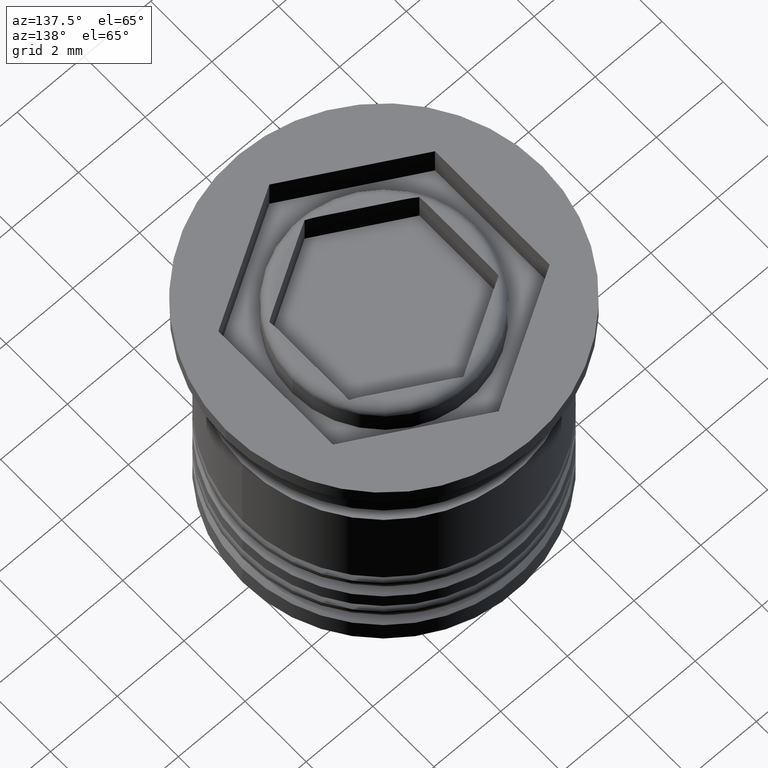
[diagram: clean part render]
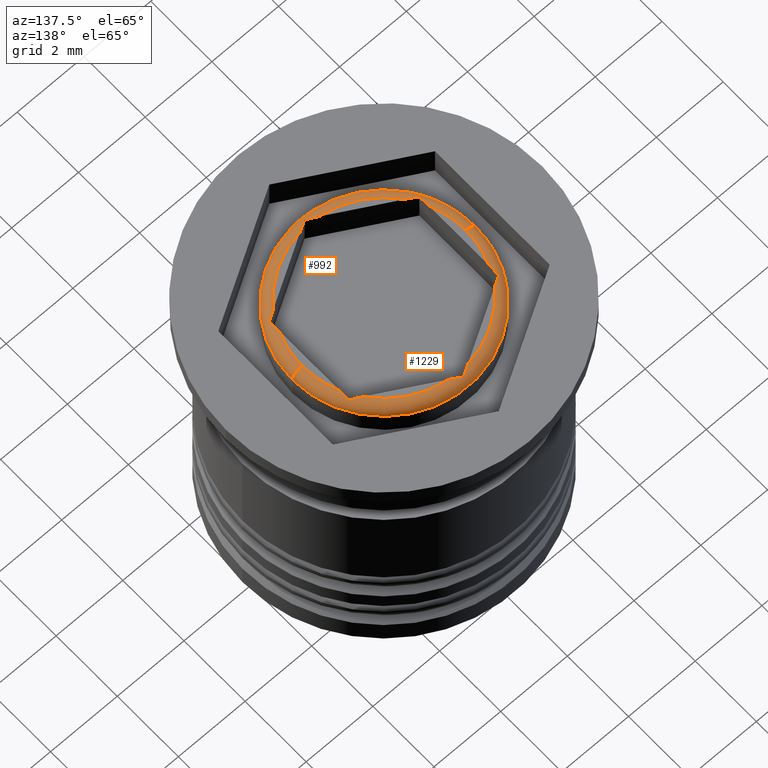
[diagram: same view with one multi-face feature highlighted, each face labeled with its STEP entity id]
A machine part, auxiliary view. The highlighted faces form ONE feature: a constant-radius fillet chain: 2 tangent blend faces with common blend radius 0.3 mm. The faces share edges in the B-rep.
Their STEP definitions:
[1] entity #1229 (Torus):
#11 = VERTEX_POINT ( 'NONE', #933 ) ;
#15 = EDGE_CURVE ( 'NONE', #493, #658, #1608, .T. ) ;
#32 = ORIENTED_EDGE ( 'NONE', *, *, #786, .F. ) ;
#37 = CARTESIAN_POINT ( 'NONE',  ( -2.156683701990996127, 1.352914295451934867, -0.008514243816631204831 ) ) ;
#41 = DIRECTION ( 'NONE',  ( 0.000000000000000000, 0.000000000000000000, -1.000000000000000000 ) ) ;
#79 = CARTESIAN_POINT ( 'NONE',  ( 2.061100629496125602, 1.408099208086820653, 4.580113279480079541E-18 ) ) ;
#92 = AXIS2_PLACEMENT_3D ( 'NONE', #1781, #1184, #1946 ) ;
#107 = CARTESIAN_POINT ( 'NONE',  ( 2.249999999999999556, 0.9695359714832667564, 0.000000000000000000 ) ) ;
#128 = VERTEX_POINT ( 'NONE', #133 ) ;
#133 = CARTESIAN_POINT ( 'NONE',  ( 1.964642781187333487, 1.463789172773352965, 0.000000000000000000 ) ) ;
#134 = CIRCLE ( 'NONE', #1293, 0.2999999999999999334 ) ;
#198 = CARTESIAN_POINT ( 'NONE',  ( -1.964642781187333931, 1.463789172773352742, 0.000000000000000000 ) ) ;
#233 = CARTESIAN_POINT ( 'NONE',  ( 0.000000000000000000, 0.000000000000000000, 0.000000000000000000 ) ) ;
#247 = CARTESIAN_POINT ( 'NONE',  ( -0.1888993705038740090, 2.489015108943152921, 5.673802033703191998E-17 ) ) ;
#255 = EDGE_CURVE ( 'NONE', #276, #128, #712, .T. ) ;
#269 = CARTESIAN_POINT ( 'NONE',  ( 2.750000000000000000, 0.000000000000000000, -0.2999999999999999334 ) ) ;
#276 = VERTEX_POINT ( 'NONE', #1507 ) ;
#292 = CARTESIAN_POINT ( 'NONE',  ( 2.249999999999999556, 1.299038105676658228, -0.03909113539159181361 ) ) ;
#293 = DIRECTION ( 'NONE',  ( 1.000000000000000000, 0.000000000000000000, 0.000000000000000000 ) ) ;
#299 = CARTESIAN_POINT ( 'NONE',  ( -0.2853572188126657916, 2.433325144256619943, 0.000000000000000000 ) ) ;
#302 = TOROIDAL_SURFACE ( 'NONE', #92, 2.449999999999999734, 0.2999999999999999889 ) ;
#313 = CARTESIAN_POINT ( 'NONE',  ( -2.249999999999999556, 1.080915900856332712, 2.962634858630477215E-17 ) ) ;
#321 = CARTESIAN_POINT ( 'NONE',  ( -2.249999999999999556, 0.9695359714832668674, 0.000000000000000000 ) ) ;
#346 = EDGE_CURVE ( 'NONE', #1578, #1549, #605, .T. ) ;
#400 = ORIENTED_EDGE ( 'NONE', *, *, #570, .F. ) ;
#412 = CARTESIAN_POINT ( 'NONE',  ( 2.249999999999999556, 0.9695359714832667564, 0.000000000000000000 ) ) ;
#416 = CARTESIAN_POINT ( 'NONE',  ( 2.249999999999999556, 1.191285726126103395, -0.008514243816631157993 ) ) ;
#423 = EDGE_CURVE ( 'NONE', #1296, #276, #1865, .T. ) ;
#480 = CARTESIAN_POINT ( 'NONE',  ( 0.2853572188126658471, 2.433325144256619943, 0.000000000000000000 ) ) ;
#493 = VERTEX_POINT ( 'NONE', #1897 ) ;
#500 = EDGE_LOOP ( 'NONE', ( #1315, #729, #824, #556, #511, #1027, #400, #908, #32, #835, #1218, #1749, #1830 ) ) ;
#511 = ORIENTED_EDGE ( 'NONE', *, *, #916, .F. ) ;
#525 = CIRCLE ( 'NONE', #798, 2.449999999999999734 ) ;
#548 = CARTESIAN_POINT ( 'NONE',  ( 1.964642781187333487, 1.463789172773352965, 0.000000000000000000 ) ) ;
#556 = ORIENTED_EDGE ( 'NONE', *, *, #600, .F. ) ;
#564 = CIRCLE ( 'NONE', #834, 2.449999999999999734 ) ;
#570 = EDGE_CURVE ( 'NONE', #658, #1436, #1205, .T. ) ;
#581 = CARTESIAN_POINT ( 'NONE',  ( -1.964642781187333931, 1.463789172773352742, 0.000000000000000000 ) ) ;
#596 = DIRECTION ( 'NONE',  ( -0.000000000000000000, -0.000000000000000000, 1.000000000000000000 ) ) ;
#600 = EDGE_CURVE ( 'NONE', #1895, #11, #988, .T. ) ;
#605 = CIRCLE ( 'NONE', #1693, 0.2999999999999999334 ) ;
#624 = CARTESIAN_POINT ( 'NONE',  ( -0.2853572188126657916, 2.433325144256619943, 0.000000000000000000 ) ) ;
#642 = EDGE_CURVE ( 'NONE', #1549, #1296, #564, .T. ) ;
#658 = VERTEX_POINT ( 'NONE', #1498 ) ;
#661 = EDGE_CURVE ( 'NONE', #1413, #1603, #134, .T. ) ;
#694 = FACE_OUTER_BOUND ( 'NONE', #500, .T. ) ;
#696 = CIRCLE ( 'NONE', #1471, 2.449999999999999734 ) ;
#708 = CARTESIAN_POINT ( 'NONE',  ( -2.249999999999999556, 1.299038105676657340, -0.03909113539159181361 ) ) ;
#712 = B_SPLINE_CURVE_WITH_KNOTS ( 'NONE', 3,
 ( #1992, #1801, #79, #548 ),
 .UNSPECIFIED., .F., .F.,
 ( 4, 4 ),
 ( 1.355252715606880543E-20, 0.0003318128588590308378 ),
 .UNSPECIFIED. ) ;
#729 = ORIENTED_EDGE ( 'NONE', *, *, #661, .T. ) ;
#733 = CARTESIAN_POINT ( 'NONE',  ( -2.449999999999999734, 3.000384657911015370E-16, -0.2999999999999999334 ) ) ;
#752 = DIRECTION ( 'NONE',  ( -0.000000000000000000, -0.000000000000000000, 1.000000000000000000 ) ) ;
#786 = EDGE_CURVE ( 'NONE', #128, #493, #696, .T. ) ;
#796 = VERTEX_POINT ( 'NONE', #581 ) ;
#798 = AXIS2_PLACEMENT_3D ( 'NONE', #1537, #1844, #1073 ) ;
#805 = CARTESIAN_POINT ( 'NONE',  ( 0.1888993705038739812, 2.489015108943152477, 6.307560615009485483E-17 ) ) ;
#824 = ORIENTED_EDGE ( 'NONE', *, *, #1993, .F. ) ;
#834 = AXIS2_PLACEMENT_3D ( 'NONE', #1562, #884, #1248 ) ;
#835 = ORIENTED_EDGE ( 'NONE', *, *, #255, .F. ) ;
#847 = DIRECTION ( 'NONE',  ( 1.000000000000000000, 0.000000000000000000, 0.000000000000000000 ) ) ;
#870 = DIRECTION ( 'NONE',  ( 1.000000000000000000, 0.000000000000000000, 0.000000000000000000 ) ) ;
#879 = CARTESIAN_POINT ( 'NONE',  ( 0.000000000000000000, 0.000000000000000000, -0.2999999999999999334 ) ) ;
#884 = DIRECTION ( 'NONE',  ( -0.000000000000000000, -0.000000000000000000, 1.000000000000000000 ) ) ;
#894 = CIRCLE ( 'NONE', #962, 2.449999999999999734 ) ;
#895 = AXIS2_PLACEMENT_3D ( 'NONE', #879, #41, #847 ) ;
#908 = ORIENTED_EDGE ( 'NONE', *, *, #15, .F. ) ;
#915 = CARTESIAN_POINT ( 'NONE',  ( 2.249999999999999556, 1.080915900856332712, 0.000000000000000000 ) ) ;
#916 = EDGE_CURVE ( 'NONE', #796, #1895, #919, .T. ) ;
#919 = B_SPLINE_CURVE_WITH_KNOTS ( 'NONE', 3,
 ( #198, #1440, #37, #1713 ),
 .UNSPECIFIED., .F., .F.,
 ( 4, 4 ),
 ( 0.000000000000000000, 0.0003318128588590306210 ),
 .UNSPECIFIED. ) ;
#933 = CARTESIAN_POINT ( 'NONE',  ( -2.249999999999999556, 0.9695359714832668674, 0.000000000000000000 ) ) ;
#937 = CARTESIAN_POINT ( 'NONE',  ( -2.249999999999999556, 1.299038105676657340, -0.03909113539159181361 ) ) ;
#954 = CARTESIAN_POINT ( 'NONE',  ( 0.000000000000000000, 2.598076211353315568, -0.03909113539159181361 ) ) ;
#962 = AXIS2_PLACEMENT_3D ( 'NONE', #233, #596, #870 ) ;
#971 = CARTESIAN_POINT ( 'NONE',  ( 0.09331629800900277660, 2.544200021578038484, -0.008514243816631314118 ) ) ;
#988 = B_SPLINE_CURVE_WITH_KNOTS ( 'NONE', 3,
 ( #937, #1486, #313, #321 ),
 .UNSPECIFIED., .F., .F.,
 ( 4, 4 ),
 ( 1.355252715606880392E-20, 0.0003318128588590305125 ),
 .UNSPECIFIED. ) ;
#1004 = CARTESIAN_POINT ( 'NONE',  ( -2.449999999999999734, 3.184081677783117698E-16, 0.000000000000000000 ) ) ;
#1019 = DIRECTION ( 'NONE',  ( 0.000000000000000000, 0.000000000000000000, -1.000000000000000000 ) ) ;
#1027 = ORIENTED_EDGE ( 'NONE', *, *, #1240, .F. ) ;
#1073 = DIRECTION ( 'NONE',  ( 1.000000000000000000, 0.000000000000000000, 0.000000000000000000 ) ) ;
#1184 = DIRECTION ( 'NONE',  ( -0.000000000000000000, -0.000000000000000000, 1.000000000000000000 ) ) ;
#1205 = B_SPLINE_CURVE_WITH_KNOTS ( 'NONE', 3,
 ( #1926, #1725, #247, #299 ),
 .UNSPECIFIED., .F., .F.,
 ( 4, 4 ),
 ( 7.807858345385552951E-20, 0.0003318128588590312173 ),
 .UNSPECIFIED. ) ;
#1218 = ORIENTED_EDGE ( 'NONE', *, *, #423, .F. ) ;
#1229 = ADVANCED_FACE ( 'NONE', ( #694 ), #302, .T. ) ;
#1240 = EDGE_CURVE ( 'NONE', #1436, #796, #894, .T. ) ;
#1248 = DIRECTION ( 'NONE',  ( 1.000000000000000000, 0.000000000000000000, 0.000000000000000000 ) ) ;
#1293 = AXIS2_PLACEMENT_3D ( 'NONE', #733, #1826, #1399 ) ;
#1296 = VERTEX_POINT ( 'NONE', #412 ) ;
#1310 = DIRECTION ( 'NONE',  ( 0.000000000000000000, -1.000000000000000000, 0.000000000000000000 ) ) ;
#1315 = ORIENTED_EDGE ( 'NONE', *, *, #1650, .F. ) ;
#1399 = DIRECTION ( 'NONE',  ( -1.000000000000000000, 1.224646799147353207E-16, 0.000000000000000000 ) ) ;
#1413 = VERTEX_POINT ( 'NONE', #1635 ) ;
#1436 = VERTEX_POINT ( 'NONE', #624 ) ;
#1440 = CARTESIAN_POINT ( 'NONE',  ( -2.061100629496125158, 1.408099208086819987, 0.000000000000000000 ) ) ;
#1471 = AXIS2_PLACEMENT_3D ( 'NONE', #1506, #752, #293 ) ;
#1486 = CARTESIAN_POINT ( 'NONE',  ( -2.249999999999999556, 1.191285726126103395, -0.008514243816639992940 ) ) ;
#1498 = CARTESIAN_POINT ( 'NONE',  ( 0.000000000000000000, 2.598076211353315568, -0.03909113539159181361 ) ) ;
#1506 = CARTESIAN_POINT ( 'NONE',  ( 0.000000000000000000, 0.000000000000000000, 0.000000000000000000 ) ) ;
#1507 = CARTESIAN_POINT ( 'NONE',  ( 2.249999999999999556, 1.299038105676658228, -0.03909113539159181361 ) ) ;
#1537 = CARTESIAN_POINT ( 'NONE',  ( 0.000000000000000000, 0.000000000000000000, 0.000000000000000000 ) ) ;
#1549 = VERTEX_POINT ( 'NONE', #1817 ) ;
#1562 = CARTESIAN_POINT ( 'NONE',  ( 0.000000000000000000, 0.000000000000000000, 0.000000000000000000 ) ) ;
#1578 = VERTEX_POINT ( 'NONE', #269 ) ;
#1603 = VERTEX_POINT ( 'NONE', #1004 ) ;
#1608 = B_SPLINE_CURVE_WITH_KNOTS ( 'NONE', 3,
 ( #480, #805, #971, #954 ),
 .UNSPECIFIED., .F., .F.,
 ( 4, 4 ),
 ( 6.984735342437677234E-19, 0.0003318128588590306210 ),
 .UNSPECIFIED. ) ;
#1635 = CARTESIAN_POINT ( 'NONE',  ( -2.750000000000000000, 3.367778697655221012E-16, -0.2999999999999999334 ) ) ;
#1647 = CARTESIAN_POINT ( 'NONE',  ( 2.449999999999999734, 0.000000000000000000, -0.2999999999999999334 ) ) ;
#1650 = EDGE_CURVE ( 'NONE', #1413, #1578, #1909, .T. ) ;
#1693 = AXIS2_PLACEMENT_3D ( 'NONE', #1647, #1310, #1019 ) ;
#1713 = CARTESIAN_POINT ( 'NONE',  ( -2.249999999999999556, 1.299038105676657340, -0.03909113539159181361 ) ) ;
#1725 = CARTESIAN_POINT ( 'NONE',  ( -0.09331629800900279048, 2.544200021578038484, -0.008514243816639925286 ) ) ;
#1749 = ORIENTED_EDGE ( 'NONE', *, *, #642, .F. ) ;
#1781 = CARTESIAN_POINT ( 'NONE',  ( 0.000000000000000000, 0.000000000000000000, -0.2999999999999999334 ) ) ;
#1801 = CARTESIAN_POINT ( 'NONE',  ( 2.156683701990996571, 1.352914295451935311, -0.008514243816639953041 ) ) ;
#1817 = CARTESIAN_POINT ( 'NONE',  ( 2.449999999999999734, 0.000000000000000000, 0.000000000000000000 ) ) ;
#1826 = DIRECTION ( 'NONE',  ( 1.224646799147353207E-16, 1.000000000000000000, 0.000000000000000000 ) ) ;
#1830 = ORIENTED_EDGE ( 'NONE', *, *, #346, .F. ) ;
#1844 = DIRECTION ( 'NONE',  ( -0.000000000000000000, -0.000000000000000000, 1.000000000000000000 ) ) ;
#1865 = B_SPLINE_CURVE_WITH_KNOTS ( 'NONE', 3,
 ( #107, #915, #416, #292 ),
 .UNSPECIFIED., .F., .F.,
 ( 4, 4 ),
 ( 1.091596556667333610E-19, 0.0003318128588590312715 ),
 .UNSPECIFIED. ) ;
#1895 = VERTEX_POINT ( 'NONE', #708 ) ;
#1897 = CARTESIAN_POINT ( 'NONE',  ( 0.2853572188126658471, 2.433325144256619943, 0.000000000000000000 ) ) ;
#1909 = CIRCLE ( 'NONE', #895, 2.750000000000000000 ) ;
#1926 = CARTESIAN_POINT ( 'NONE',  ( 0.000000000000000000, 2.598076211353315568, -0.03909113539159181361 ) ) ;
#1946 = DIRECTION ( 'NONE',  ( 1.000000000000000000, 0.000000000000000000, 0.000000000000000000 ) ) ;
#1992 = CARTESIAN_POINT ( 'NONE',  ( 2.249999999999999556, 1.299038105676658228, -0.03909113539159181361 ) ) ;
#1993 = EDGE_CURVE ( 'NONE', #11, #1603, #525, .T. ) ;
[2] entity #992 (Torus):
#75 = ORIENTED_EDGE ( 'NONE', *, *, #346, .T. ) ;
#95 = DIRECTION ( 'NONE',  ( 1.000000000000000000, 0.000000000000000000, 0.000000000000000000 ) ) ;
#112 = DIRECTION ( 'NONE',  ( 1.000000000000000000, 0.000000000000000000, 0.000000000000000000 ) ) ;
#134 = CIRCLE ( 'NONE', #1293, 0.2999999999999999334 ) ;
#150 = CARTESIAN_POINT ( 'NONE',  ( 2.249999999999999556, -0.9695359714832668674, 0.000000000000000000 ) ) ;
#165 = CARTESIAN_POINT ( 'NONE',  ( 0.2853572188126657916, -2.433325144256619943, 0.000000000000000000 ) ) ;
#226 = CIRCLE ( 'NONE', #657, 2.750000000000000000 ) ;
#244 = B_SPLINE_CURVE_WITH_KNOTS ( 'NONE', 3,
 ( #1172, #1024, #1633, #878 ),
 .UNSPECIFIED., .F., .F.,
 ( 4, 4 ),
 ( 1.091596556667333610E-19, 0.0003318128588590312715 ),
 .UNSPECIFIED. ) ;
#245 = CARTESIAN_POINT ( 'NONE',  ( 0.000000000000000000, 0.000000000000000000, 0.000000000000000000 ) ) ;
#259 = CARTESIAN_POINT ( 'NONE',  ( -0.09331629800900277660, -2.544200021578038484, -0.008514243816631314118 ) ) ;
#261 = CARTESIAN_POINT ( 'NONE',  ( -1.671110122936318010E-17, -2.598076211353315568, -0.03909113539159181361 ) ) ;
#269 = CARTESIAN_POINT ( 'NONE',  ( 2.750000000000000000, 0.000000000000000000, -0.2999999999999999334 ) ) ;
#277 = CARTESIAN_POINT ( 'NONE',  ( 0.000000000000000000, 0.000000000000000000, -0.2999999999999999334 ) ) ;
#314 = ORIENTED_EDGE ( 'NONE', *, *, #655, .F. ) ;
#346 = EDGE_CURVE ( 'NONE', #1578, #1549, #605, .T. ) ;
#362 = AXIS2_PLACEMENT_3D ( 'NONE', #245, #1047, #589 ) ;
#380 = CARTESIAN_POINT ( 'NONE',  ( -2.156683701990996571, -1.352914295451935311, -0.008514243816639953041 ) ) ;
#398 = CARTESIAN_POINT ( 'NONE',  ( 0.2853572188126657916, -2.433325144256619943, 0.000000000000000000 ) ) ;
#403 = CARTESIAN_POINT ( 'NONE',  ( -1.964642781187333931, -1.463789172773353409, 0.000000000000000000 ) ) ;
#448 = DIRECTION ( 'NONE',  ( -0.000000000000000000, -0.000000000000000000, 1.000000000000000000 ) ) ;
#453 = EDGE_LOOP ( 'NONE', ( #964, #1675, #75, #1643, #794, #595, #1885, #1316, #314, #1767, #1618, #665, #643 ) ) ;
#454 = TOROIDAL_SURFACE ( 'NONE', #1591, 2.449999999999999734, 0.2999999999999999889 ) ;
#477 = CARTESIAN_POINT ( 'NONE',  ( 0.1888993705038740090, -2.489015108943152921, 5.673802033703191998E-17 ) ) ;
#508 = VERTEX_POINT ( 'NONE', #1121 ) ;
#509 = VERTEX_POINT ( 'NONE', #1291 ) ;
#515 = B_SPLINE_CURVE_WITH_KNOTS ( 'NONE', 3,
 ( #261, #625, #477, #165 ),
 .UNSPECIFIED., .F., .F.,
 ( 4, 4 ),
 ( 7.807858345385552951E-20, 0.0003318128588590312173 ),
 .UNSPECIFIED. ) ;
#539 = B_SPLINE_CURVE_WITH_KNOTS ( 'NONE', 3,
 ( #790, #1406, #1283, #1910 ),
 .UNSPECIFIED., .F., .F.,
 ( 4, 4 ),
 ( 0.000000000000000000, 0.0003318128588590306210 ),
 .UNSPECIFIED. ) ;
#555 = CIRCLE ( 'NONE', #1090, 2.449999999999999734 ) ;
#580 = B_SPLINE_CURVE_WITH_KNOTS ( 'NONE', 3,
 ( #1412, #1095, #259, #1550 ),
 .UNSPECIFIED., .F., .F.,
 ( 4, 4 ),
 ( 6.984735342437677234E-19, 0.0003318128588590306210 ),
 .UNSPECIFIED. ) ;
#589 = DIRECTION ( 'NONE',  ( 1.000000000000000000, 0.000000000000000000, 0.000000000000000000 ) ) ;
#592 = EDGE_CURVE ( 'NONE', #929, #1678, #1563, .T. ) ;
#595 = ORIENTED_EDGE ( 'NONE', *, *, #880, .F. ) ;
#605 = CIRCLE ( 'NONE', #1693, 0.2999999999999999334 ) ;
#607 = CARTESIAN_POINT ( 'NONE',  ( -1.964642781187333931, -1.463789172773353409, 0.000000000000000000 ) ) ;
#619 = AXIS2_PLACEMENT_3D ( 'NONE', #1851, #1698, #95 ) ;
#625 = CARTESIAN_POINT ( 'NONE',  ( 0.09331629800900277660, -2.544200021578038484, -0.008514243816639925286 ) ) ;
#635 = CARTESIAN_POINT ( 'NONE',  ( -2.249999999999999556, -1.299038105676658228, -0.03909113539159181361 ) ) ;
#643 = ORIENTED_EDGE ( 'NONE', *, *, #1809, .F. ) ;
#649 = CARTESIAN_POINT ( 'NONE',  ( 1.964642781187333931, -1.463789172773352742, 0.000000000000000000 ) ) ;
#655 = EDGE_CURVE ( 'NONE', #1723, #1295, #580, .T. ) ;
#657 = AXIS2_PLACEMENT_3D ( 'NONE', #1307, #1622, #1203 ) ;
#661 = EDGE_CURVE ( 'NONE', #1413, #1603, #134, .T. ) ;
#662 = CARTESIAN_POINT ( 'NONE',  ( 0.000000000000000000, 0.000000000000000000, 0.000000000000000000 ) ) ;
#665 = ORIENTED_EDGE ( 'NONE', *, *, #1239, .F. ) ;
#733 = CARTESIAN_POINT ( 'NONE',  ( -2.449999999999999734, 3.000384657911015370E-16, -0.2999999999999999334 ) ) ;
#767 = DIRECTION ( 'NONE',  ( 1.000000000000000000, 0.000000000000000000, 0.000000000000000000 ) ) ;
#782 = CARTESIAN_POINT ( 'NONE',  ( 2.249999999999999556, -1.080915900856332712, 2.962634858630477215E-17 ) ) ;
#790 = CARTESIAN_POINT ( 'NONE',  ( 1.964642781187333931, -1.463789172773352742, 0.000000000000000000 ) ) ;
#794 = ORIENTED_EDGE ( 'NONE', *, *, #592, .F. ) ;
#823 = EDGE_CURVE ( 'NONE', #1295, #1061, #515, .T. ) ;
#833 = VERTEX_POINT ( 'NONE', #649 ) ;
#878 = CARTESIAN_POINT ( 'NONE',  ( -2.249999999999999556, -1.299038105676658228, -0.03909113539159181361 ) ) ;
#880 = EDGE_CURVE ( 'NONE', #833, #929, #539, .T. ) ;
#890 = CARTESIAN_POINT ( 'NONE',  ( -0.2853572188126658471, -2.433325144256619943, 0.000000000000000000 ) ) ;
#929 = VERTEX_POINT ( 'NONE', #1843 ) ;
#950 = EDGE_CURVE ( 'NONE', #1678, #1549, #1955, .T. ) ;
#964 = ORIENTED_EDGE ( 'NONE', *, *, #661, .F. ) ;
#977 = VERTEX_POINT ( 'NONE', #607 ) ;
#992 = ADVANCED_FACE ( 'NONE', ( #1369 ), #454, .T. ) ;
#1004 = CARTESIAN_POINT ( 'NONE',  ( -2.449999999999999734, 3.184081677783117698E-16, 0.000000000000000000 ) ) ;
#1019 = DIRECTION ( 'NONE',  ( 0.000000000000000000, 0.000000000000000000, -1.000000000000000000 ) ) ;
#1024 = CARTESIAN_POINT ( 'NONE',  ( -2.249999999999999556, -1.080915900856332712, 0.000000000000000000 ) ) ;
#1047 = DIRECTION ( 'NONE',  ( -0.000000000000000000, -0.000000000000000000, 1.000000000000000000 ) ) ;
#1061 = VERTEX_POINT ( 'NONE', #398 ) ;
#1090 = AXIS2_PLACEMENT_3D ( 'NONE', #662, #1309, #1581 ) ;
#1095 = CARTESIAN_POINT ( 'NONE',  ( -0.1888993705038739812, -2.489015108943152477, 6.307560615009485483E-17 ) ) ;
#1121 = CARTESIAN_POINT ( 'NONE',  ( -2.249999999999999556, -1.299038105676658228, -0.03909113539159181361 ) ) ;
#1125 = CIRCLE ( 'NONE', #362, 2.449999999999999734 ) ;
#1172 = CARTESIAN_POINT ( 'NONE',  ( -2.249999999999999556, -0.9695359714832667564, 0.000000000000000000 ) ) ;
#1200 = EDGE_CURVE ( 'NONE', #977, #1723, #1741, .T. ) ;
#1203 = DIRECTION ( 'NONE',  ( 1.000000000000000000, 0.000000000000000000, 0.000000000000000000 ) ) ;
#1239 = EDGE_CURVE ( 'NONE', #509, #508, #244, .T. ) ;
#1283 = CARTESIAN_POINT ( 'NONE',  ( 2.156683701990996127, -1.352914295451934867, -0.008514243816631204831 ) ) ;
#1291 = CARTESIAN_POINT ( 'NONE',  ( -2.249999999999999556, -0.9695359714832667564, 0.000000000000000000 ) ) ;
#1293 = AXIS2_PLACEMENT_3D ( 'NONE', #733, #1826, #1399 ) ;
#1295 = VERTEX_POINT ( 'NONE', #1816 ) ;
#1307 = CARTESIAN_POINT ( 'NONE',  ( 0.000000000000000000, 0.000000000000000000, -0.2999999999999999334 ) ) ;
#1309 = DIRECTION ( 'NONE',  ( -0.000000000000000000, -0.000000000000000000, 1.000000000000000000 ) ) ;
#1310 = DIRECTION ( 'NONE',  ( 0.000000000000000000, -1.000000000000000000, 0.000000000000000000 ) ) ;
#1316 = ORIENTED_EDGE ( 'NONE', *, *, #823, .F. ) ;
#1369 = FACE_OUTER_BOUND ( 'NONE', #453, .T. ) ;
#1379 = EDGE_CURVE ( 'NONE', #1061, #833, #1125, .T. ) ;
#1382 = EDGE_CURVE ( 'NONE', #1578, #1413, #226, .T. ) ;
#1399 = DIRECTION ( 'NONE',  ( -1.000000000000000000, 1.224646799147353207E-16, 0.000000000000000000 ) ) ;
#1406 = CARTESIAN_POINT ( 'NONE',  ( 2.061100629496125158, -1.408099208086819987, 0.000000000000000000 ) ) ;
#1412 = CARTESIAN_POINT ( 'NONE',  ( -0.2853572188126658471, -2.433325144256619943, 0.000000000000000000 ) ) ;
#1413 = VERTEX_POINT ( 'NONE', #1635 ) ;
#1518 = AXIS2_PLACEMENT_3D ( 'NONE', #1523, #448, #767 ) ;
#1523 = CARTESIAN_POINT ( 'NONE',  ( 0.000000000000000000, 0.000000000000000000, 0.000000000000000000 ) ) ;
#1526 = EDGE_CURVE ( 'NONE', #508, #977, #1836, .T. ) ;
#1549 = VERTEX_POINT ( 'NONE', #1817 ) ;
#1550 = CARTESIAN_POINT ( 'NONE',  ( -1.671110122936318010E-17, -2.598076211353315568, -0.03909113539159181361 ) ) ;
#1563 = B_SPLINE_CURVE_WITH_KNOTS ( 'NONE', 3,
 ( #1818, #1658, #782, #150 ),
 .UNSPECIFIED., .F., .F.,
 ( 4, 4 ),
 ( 1.355252715606880392E-20, 0.0003318128588590305125 ),
 .UNSPECIFIED. ) ;
#1578 = VERTEX_POINT ( 'NONE', #269 ) ;
#1581 = DIRECTION ( 'NONE',  ( 1.000000000000000000, 0.000000000000000000, 0.000000000000000000 ) ) ;
#1591 = AXIS2_PLACEMENT_3D ( 'NONE', #277, #1881, #112 ) ;
#1603 = VERTEX_POINT ( 'NONE', #1004 ) ;
#1618 = ORIENTED_EDGE ( 'NONE', *, *, #1526, .F. ) ;
#1622 = DIRECTION ( 'NONE',  ( 0.000000000000000000, 0.000000000000000000, -1.000000000000000000 ) ) ;
#1633 = CARTESIAN_POINT ( 'NONE',  ( -2.249999999999999556, -1.191285726126103395, -0.008514243816631157993 ) ) ;
#1635 = CARTESIAN_POINT ( 'NONE',  ( -2.750000000000000000, 3.367778697655221012E-16, -0.2999999999999999334 ) ) ;
#1643 = ORIENTED_EDGE ( 'NONE', *, *, #950, .F. ) ;
#1647 = CARTESIAN_POINT ( 'NONE',  ( 2.449999999999999734, 0.000000000000000000, -0.2999999999999999334 ) ) ;
#1658 = CARTESIAN_POINT ( 'NONE',  ( 2.249999999999999556, -1.191285726126103395, -0.008514243816639992940 ) ) ;
#1675 = ORIENTED_EDGE ( 'NONE', *, *, #1382, .F. ) ;
#1678 = VERTEX_POINT ( 'NONE', #1699 ) ;
#1693 = AXIS2_PLACEMENT_3D ( 'NONE', #1647, #1310, #1019 ) ;
#1698 = DIRECTION ( 'NONE',  ( -0.000000000000000000, -0.000000000000000000, 1.000000000000000000 ) ) ;
#1699 = CARTESIAN_POINT ( 'NONE',  ( 2.249999999999999556, -0.9695359714832668674, 0.000000000000000000 ) ) ;
#1723 = VERTEX_POINT ( 'NONE', #890 ) ;
#1741 = CIRCLE ( 'NONE', #619, 2.449999999999999734 ) ;
#1767 = ORIENTED_EDGE ( 'NONE', *, *, #1200, .F. ) ;
#1809 = EDGE_CURVE ( 'NONE', #1603, #509, #555, .T. ) ;
#1816 = CARTESIAN_POINT ( 'NONE',  ( -1.671110122936318010E-17, -2.598076211353315568, -0.03909113539159181361 ) ) ;
#1817 = CARTESIAN_POINT ( 'NONE',  ( 2.449999999999999734, 0.000000000000000000, 0.000000000000000000 ) ) ;
#1818 = CARTESIAN_POINT ( 'NONE',  ( 2.249999999999999556, -1.299038105676657340, -0.03909113539159181361 ) ) ;
#1826 = DIRECTION ( 'NONE',  ( 1.224646799147353207E-16, 1.000000000000000000, 0.000000000000000000 ) ) ;
#1836 = B_SPLINE_CURVE_WITH_KNOTS ( 'NONE', 3,
 ( #635, #380, #1941, #403 ),
 .UNSPECIFIED., .F., .F.,
 ( 4, 4 ),
 ( 1.355252715606880543E-20, 0.0003318128588590308378 ),
 .UNSPECIFIED. ) ;
#1843 = CARTESIAN_POINT ( 'NONE',  ( 2.249999999999999556, -1.299038105676657340, -0.03909113539159181361 ) ) ;
#1851 = CARTESIAN_POINT ( 'NONE',  ( 0.000000000000000000, 0.000000000000000000, 0.000000000000000000 ) ) ;
#1881 = DIRECTION ( 'NONE',  ( -0.000000000000000000, -0.000000000000000000, 1.000000000000000000 ) ) ;
#1885 = ORIENTED_EDGE ( 'NONE', *, *, #1379, .F. ) ;
#1910 = CARTESIAN_POINT ( 'NONE',  ( 2.249999999999999556, -1.299038105676657340, -0.03909113539159181361 ) ) ;
#1941 = CARTESIAN_POINT ( 'NONE',  ( -2.061100629496125602, -1.408099208086820653, 4.580113279480079541E-18 ) ) ;
#1955 = CIRCLE ( 'NONE', #1518, 2.449999999999999734 ) ;